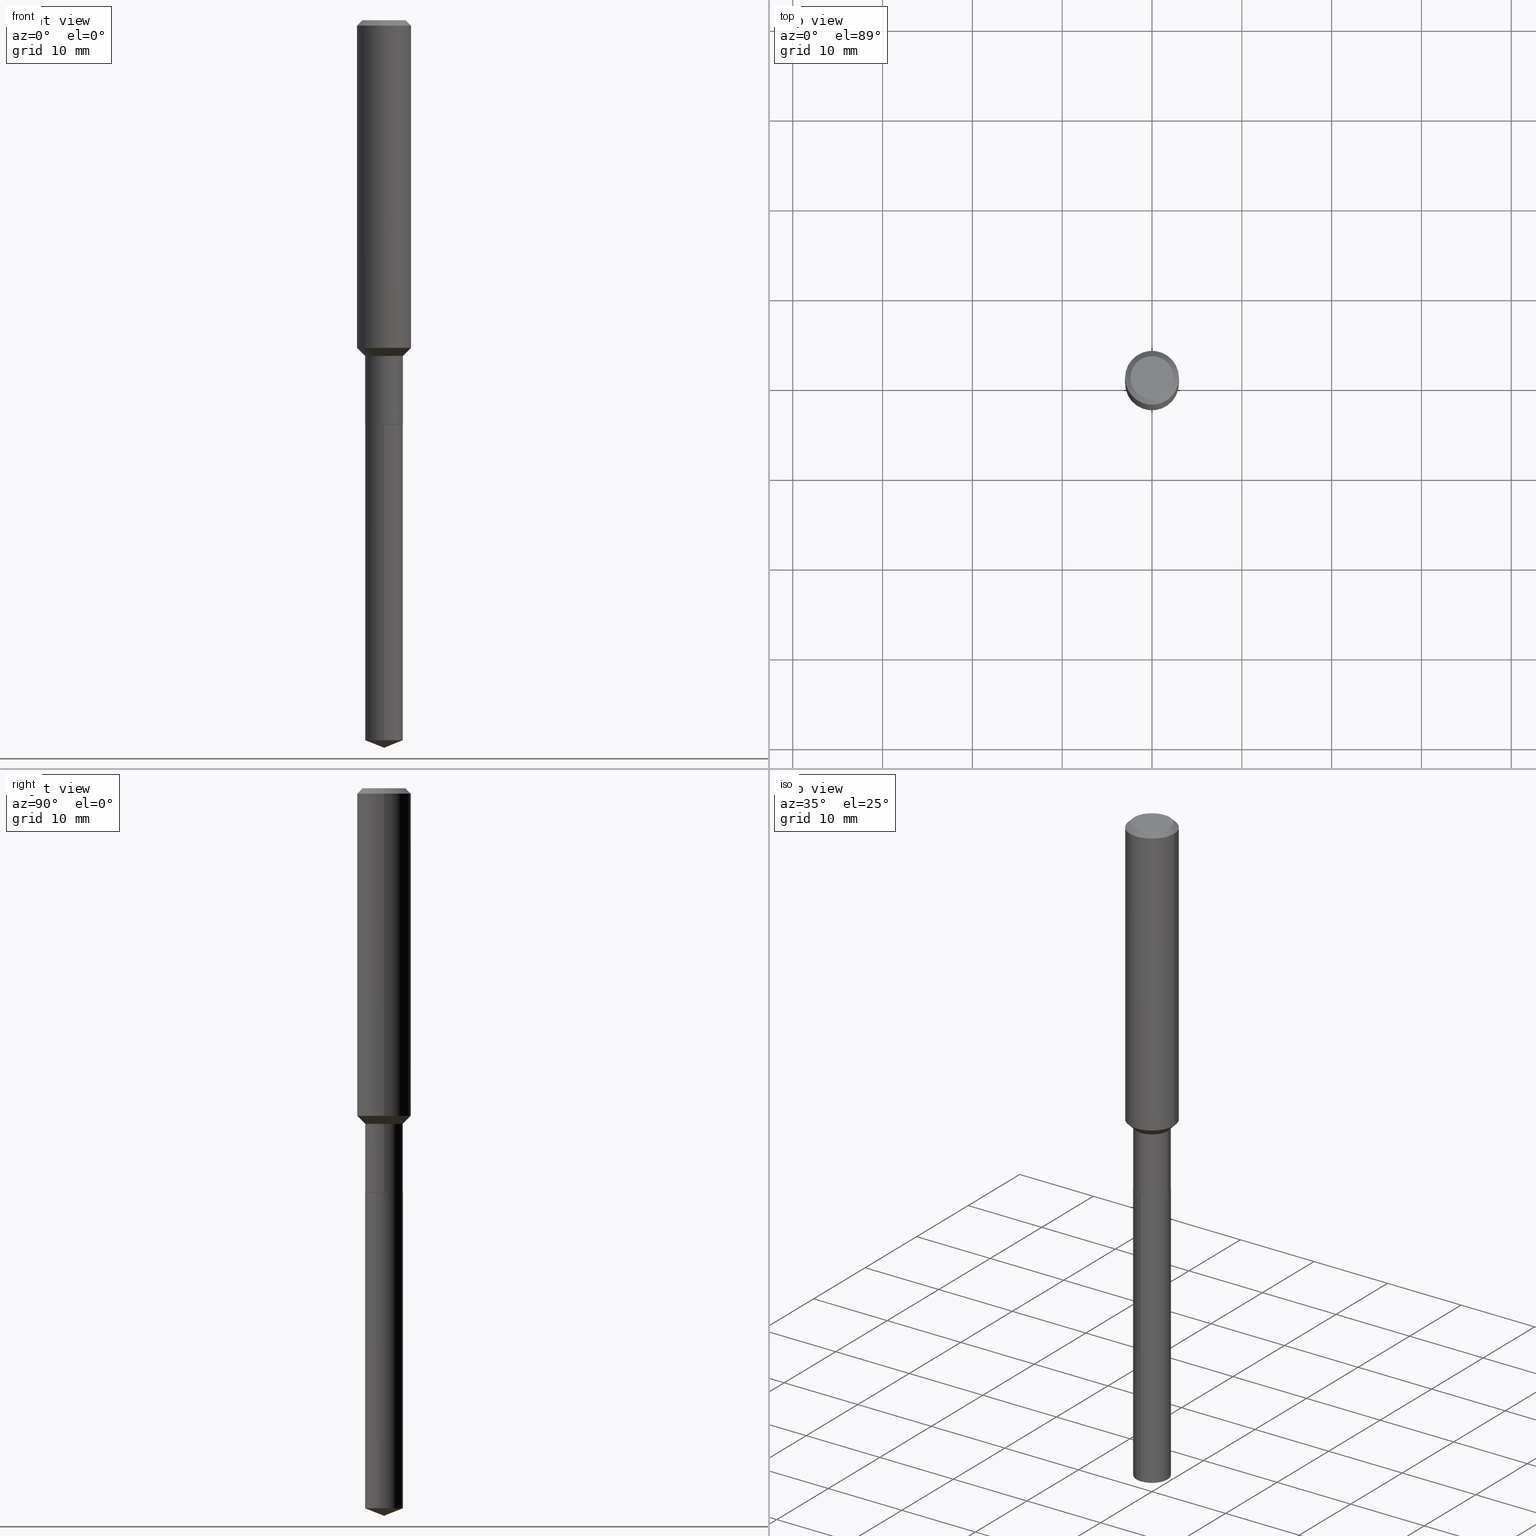
[diagram: canonical four-view strip — front | top / right | iso, engineering-drawing reading convention]
A machine part, canonical four-view strip (front | top / right | iso — engineering-drawing reading convention). The complete STEP part file that produces these views, byte-faithful:
ISO-10303-21;
HEADER;
FILE_DESCRIPTION (( 'STEP AP203' ),
    '1' );
FILE_NAME ('66618.STEP',
    '2024-04-25T02:08:43',
    ( '' ),
    ( '' ),
    'SwSTEP 2.0',
    'SolidWorks 2023',
    '' );
FILE_SCHEMA (( 'CONFIG_CONTROL_DESIGN' ));
ENDSEC;

DATA;
#1 = DIRECTION ( 'NONE',  ( 0.000000000000000000, 0.000000000000000000, 1.000000000000000000 ) ) ;
#2 = LINE ( 'NONE', #424, #68 ) ;
#3 = EDGE_CURVE ( 'NONE', #327, #151, #231, .T. ) ;
#4 = DIRECTION ( 'NONE',  ( 1.000000000000000000, 0.000000000000000000, 0.000000000000000000 ) ) ;
#5 = DIRECTION ( 'NONE',  ( 1.000000000000000000, -6.982962677686263555E-15, 0.000000000000000000 ) ) ;
#6 = VECTOR ( 'NONE', #16, 39.37007874015748143 ) ;
#7 = AXIS2_PLACEMENT_3D ( 'NONE', #442, #438, #93 ) ;
#8 = DIRECTION ( 'NONE',  ( -2.445468806185136597E-29, 3.491481338843145583E-15, 1.000000000000000000 ) ) ;
#9 = CARTESIAN_POINT ( 'NONE',  ( -0.08269999999999996798, -4.549397651366318682E-15, -1.471300000000000274 ) ) ;
#10 = DIRECTION ( 'NONE',  ( -2.445468806185136597E-29, 3.491481338843145583E-15, 1.000000000000000000 ) ) ;
#11 = CARTESIAN_POINT ( 'NONE',  ( 5.776197320209327532E-31, -8.246878922347559293E-17, -0.02362000000000014088 ) ) ;
#12 = COORDINATED_UNIVERSAL_TIME_OFFSET ( 5, 0, .BEHIND. ) ;
#13 = ORIENTED_EDGE ( 'NONE', *, *, #421, .T. ) ;
#14 = FACE_OUTER_BOUND ( 'NONE', #104, .T. ) ;
#15 = AXIS2_PLACEMENT_3D ( 'NONE', #380, #41, #181 ) ;
#16 = DIRECTION ( 'NONE',  ( -0.7071067811865459074, 2.468850131082240100E-15, -0.7071067811865491270 ) ) ;
#17 = CARTESIAN_POINT ( 'NONE',  ( 3.511448658801237790E-29, -5.013418054444873531E-15, -1.435900000000000176 ) ) ;
#18 = DIRECTION ( 'NONE',  ( 1.000000000000000000, -6.982962677686267499E-15, 4.875432709231658792E-29 ) ) ;
#19 = DIRECTION ( 'NONE',  ( 2.438088387897960049E-29, -3.491481338843145188E-15, -1.000000000000000000 ) ) ;
#20 = CIRCLE ( 'NONE', #82, 0.08269999999999999574 ) ;
#21 = FACE_OUTER_BOUND ( 'NONE', #481, .T. ) ;
#22 = DIRECTION ( 'NONE',  ( 1.000000000000000000, -6.982962677686263555E-15, 0.000000000000000000 ) ) ;
#23 = EDGE_CURVE ( 'NONE', #91, #176, #185, .T. ) ;
#24 = AXIS2_PLACEMENT_3D ( 'NONE', #232, #393, #317 ) ;
#25 = ORIENTED_EDGE ( 'NONE', *, *, #350, .T. ) ;
#26 = FACE_OUTER_BOUND ( 'NONE', #69, .T. ) ;
#27 = ORIENTED_EDGE ( 'NONE', *, *, #99, .T. ) ;
#28 = EDGE_CURVE ( 'NONE', #207, #354, #390, .T. ) ;
#29 = DIRECTION ( 'NONE',  ( 1.000000000000000000, -6.982962677686266711E-15, 0.000000000000000000 ) ) ;
#30 = DESIGN_CONTEXT ( 'detailed design', #136, 'design' ) ;
#31 = CONICAL_SURFACE ( 'NONE', #412, 0.1180999999999999966, 0.7853981633974460586 ) ;
#32 = LOCAL_TIME ( 22, 8, 43.00000000000000000, #377 ) ;
#33 = EDGE_CURVE ( 'NONE', #43, #90, #226, .T. ) ;
#34 = ORIENTED_EDGE ( 'NONE', *, *, #291, .F. ) ;
#35 = CARTESIAN_POINT ( 'NONE',  ( 7.798695523167827716E-29, -1.113419722778666995E-14, -3.189000000000000501 ) ) ;
#36 = LINE ( 'NONE', #9, #402 ) ;
#37 = DIRECTION ( 'NONE',  ( 1.000000000000000000, -6.982962677686263555E-15, 0.000000000000000000 ) ) ;
#38 = APPROVAL_DATE_TIME ( #312, #330 ) ;
#39 = ORIENTED_EDGE ( 'NONE', *, *, #23, .F. ) ;
#40 = AXIS2_PLACEMENT_3D ( 'NONE', #134, #106, #444 ) ;
#41 = DIRECTION ( 'NONE',  ( -2.445468806185136597E-29, 3.491481338843145583E-15, 1.000000000000000000 ) ) ;
#42 = DIRECTION ( 'NONE',  ( -2.445498752953222356E-29, 3.491438453366782686E-15, 1.000000000000000000 ) ) ;
#43 = VERTEX_POINT ( 'NONE', #464 ) ;
#44 = DIRECTION ( 'NONE',  ( 1.000000000000000000, -6.982962677686261189E-15, 0.000000000000000000 ) ) ;
#45 = CARTESIAN_POINT ( 'NONE',  ( -0.08269999999999996798, -5.072945278125848507E-15, -1.471300000000000274 ) ) ;
#46 = CARTESIAN_POINT ( 'NONE',  ( 0.000000000000000000, 0.000000000000000000, 0.000000000000000000 ) ) ;
#47 = EDGE_CURVE ( 'NONE', #51, #410, #447, .T. ) ;
#48 = DIRECTION ( 'NONE',  ( -2.445468806185136597E-29, 3.491481338843145583E-15, 1.000000000000000000 ) ) ;
#49 = DIRECTION ( 'NONE',  ( -2.445468806185136877E-29, 3.491481338843145188E-15, 1.000000000000000000 ) ) ;
#50 = ORIENTED_EDGE ( 'NONE', *, *, #92, .F. ) ;
#51 = VERTEX_POINT ( 'NONE', #220 ) ;
#52 = CIRCLE ( 'NONE', #386, 0.08269999999999996798 ) ;
#53 =( GEOMETRIC_REPRESENTATION_CONTEXT ( 3 ) GLOBAL_UNCERTAINTY_ASSIGNED_CONTEXT ( ( #301 ) ) GLOBAL_UNIT_ASSIGNED_CONTEXT ( ( #300, #135, #133 ) ) REPRESENTATION_CONTEXT ( 'NONE', 'WORKASPACE' ) );
#54 = DIRECTION ( 'NONE',  ( -2.445498752953222356E-29, 3.491438453366782686E-15, 1.000000000000000000 ) ) ;
#55 = AXIS2_PLACEMENT_3D ( 'NONE', #190, #8, #155 ) ;
#56 = DIRECTION ( 'NONE',  ( 1.000000000000000000, -6.982962677686270655E-15, 0.000000000000000000 ) ) ;
#57 = CARTESIAN_POINT ( 'NONE',  ( -0.1181000000000000799, 8.391509709326788873E-16, -5.809262341591047988E-30 ) ) ;
#58 = DIRECTION ( 'NONE',  ( -2.445468806185136597E-29, 3.491481338843145583E-15, 1.000000000000000000 ) ) ;
#59 = ORIENTED_EDGE ( 'NONE', *, *, #488, .F. ) ;
#60 = CIRCLE ( 'NONE', #323, 0.08219999999999999529 ) ;
#61 = CARTESIAN_POINT ( 'NONE',  ( 4.332637083918206987E-29, -6.185857488028401870E-15, -1.771700000000000497 ) ) ;
#62 = CARTESIAN_POINT ( 'NONE',  ( 0.08269999999999998186, -5.774910134446541868E-16, 4.032598193583238570E-30 ) ) ;
#63 = ORIENTED_EDGE ( 'NONE', *, *, #148, .T. ) ;
#64 = DIRECTION ( 'NONE',  ( -2.445498752953222356E-29, 3.491438453366782686E-15, 1.000000000000000000 ) ) ;
#65 = EDGE_LOOP ( 'NONE', ( #419, #252 ) ) ;
#66 = AXIS2_PLACEMENT_3D ( 'NONE', #351, #320, #394 ) ;
#67 = ORIENTED_EDGE ( 'NONE', *, *, #206, .T. ) ;
#68 = VECTOR ( 'NONE', #378, 39.37007874015748143 ) ;
#69 = EDGE_LOOP ( 'NONE', ( #435, #227, #50, #449 ) ) ;
#70 = EDGE_CURVE ( 'NONE', #410, #292, #434, .T. ) ;
#71 = FACE_OUTER_BOUND ( 'NONE', #285, .T. ) ;
#72 = CARTESIAN_POINT ( 'NONE',  ( 7.718976929869879912E-29, -1.102053472515475002E-14, -3.156423603666644873 ) ) ;
#73 = AXIS2_PLACEMENT_3D ( 'NONE', #388, #42, #188 ) ;
#74 = AXIS2_PLACEMENT_3D ( 'NONE', #316, #10, #381 ) ;
#75 = CARTESIAN_POINT ( 'NONE',  ( 5.876188424736460136E-16, 0.08269999999999382012, -1.771700000000000719 ) ) ;
#76 = ORIENTED_EDGE ( 'NONE', *, *, #350, .F. ) ;
#77 = CC_DESIGN_PERSON_AND_ORGANIZATION_ASSIGNMENT ( #280, #213, ( #322 ) ) ;
#78 = CARTESIAN_POINT ( 'NONE',  ( -0.08269999999999998186, 5.876188424736027248E-16, -4.067959319640806203E-30 ) ) ;
#79 = ORIENTED_EDGE ( 'NONE', *, *, #33, .T. ) ;
#80 = MECHANICAL_CONTEXT ( 'NONE', #258, 'mechanical' ) ;
#81 = CYLINDRICAL_SURFACE ( 'NONE', #73, 0.08269999999999999574 ) ;
#82 = AXIS2_PLACEMENT_3D ( 'NONE', #225, #389, #44 ) ;
#83 = ADVANCED_FACE ( 'NONE', ( #283 ), #290, .T. ) ;
#84 = CIRCLE ( 'NONE', #122, 0.09447999999999998066 ) ;
#85 = DIRECTION ( 'NONE',  ( -1.000000000000000000, 6.982962677686266711E-15, 0.000000000000000000 ) ) ;
#86 = DIRECTION ( 'NONE',  ( 1.000000000000000000, -6.982962677686266711E-15, 4.876176775795936353E-29 ) ) ;
#87 = APPLICATION_PROTOCOL_DEFINITION ( 'international standard', 'config_control_design', 1994, #136 ) ;
#88 = PERSON_AND_ORGANIZATION ( #420, #237 ) ;
#89 = CARTESIAN_POINT ( 'NONE',  ( 0.08219999999999999529, -6.759857020134212754E-15, -1.771700000000000497 ) ) ;
#90 = VERTEX_POINT ( 'NONE', #197 ) ;
#91 = VERTEX_POINT ( 'NONE', #474 ) ;
#92 = EDGE_CURVE ( 'NONE', #468, #176, #360, .T. ) ;
#93 = DIRECTION ( 'NONE',  ( 1.000000000000000000, -6.982962677686265922E-15, 4.876176775795935793E-29 ) ) ;
#94 = CLOSED_SHELL ( 'NONE', ( #83, #200, #295, #259, #448, #131, #332, #460, #212, #215, #342, #476 ) ) ;
#95 = AXIS2_PLACEMENT_3D ( 'NONE', #243, #480, #364 ) ;
#96 = APPROVAL_ROLE ( '' ) ;
#97 = FACE_OUTER_BOUND ( 'NONE', #445, .T. ) ;
#98 = PLANE ( 'NONE',  #146 ) ;
#99 = EDGE_CURVE ( 'NONE', #43, #327, #423, .T. ) ;
#100 = EDGE_LOOP ( 'NONE', ( #160, #355, #126 ) ) ;
#101 = LENGTH_MEASURE_WITH_UNIT ( LENGTH_MEASURE( 0.02539999999999999897 ), #149 );
#102 = CONICAL_SURFACE ( 'NONE', #121, 99.94676754584023115, 1.195550537616120401 ) ;
#103 = VECTOR ( 'NONE', #357, 39.37007874015748143 ) ;
#104 = EDGE_LOOP ( 'NONE', ( #27, #311 ) ) ;
#105 = ORIENTED_EDGE ( 'NONE', *, *, #148, .F. ) ;
#106 = DIRECTION ( 'NONE',  ( -2.445498752953222356E-29, 3.491438453366782686E-15, 1.000000000000000000 ) ) ;
#107 = CIRCLE ( 'NONE', #170, 0.08269999999999999574 ) ;
#108 = CARTESIAN_POINT ( 'NONE',  ( 0.08269999999999996798, -5.714507507284574607E-15, -1.471300000000000274 ) ) ;
#109 = PERSON_AND_ORGANIZATION ( #420, #237 ) ;
#110 = ORIENTED_EDGE ( 'NONE', *, *, #247, .T. ) ;
#111 = DATE_AND_TIME ( #456, #32 ) ;
#112 = CIRCLE ( 'NONE', #477, 0.1181000000000001632 ) ;
#113 = AXIS2_PLACEMENT_3D ( 'NONE', #214, #371, #29 ) ;
#114 = CARTESIAN_POINT ( 'NONE',  ( 4.332637083918206987E-29, -6.185857488028401870E-15, -1.771700000000000497 ) ) ;
#115 = ORIENTED_EDGE ( 'NONE', *, *, #33, .F. ) ;
#116 = LINE ( 'NONE', #263, #217 ) ;
#117 = COORDINATED_UNIVERSAL_TIME_OFFSET ( 5, 0, .BEHIND. ) ;
#118 = DIRECTION ( 'NONE',  ( -2.445468806185136597E-29, 3.491481338843145583E-15, 1.000000000000000000 ) ) ;
#119 = PLANE ( 'NONE',  #162 ) ;
#120 = ORIENTED_EDGE ( 'NONE', *, *, #319, .T. ) ;
#121 = AXIS2_PLACEMENT_3D ( 'NONE', #416, #427, #303 ) ;
#122 = AXIS2_PLACEMENT_3D ( 'NONE', #346, #340, #150 ) ;
#123 = FACE_OUTER_BOUND ( 'NONE', #343, .T. ) ;
#124 = DIRECTION ( 'NONE',  ( 1.000000000000000000, -6.982962677686270655E-15, 0.000000000000000000 ) ) ;
#125 = EDGE_CURVE ( 'NONE', #354, #91, #261, .T. ) ;
#126 = ORIENTED_EDGE ( 'NONE', *, *, #47, .F. ) ;
#127 = ORIENTED_EDGE ( 'NONE', *, *, #92, .T. ) ;
#128 = CC_DESIGN_PERSON_AND_ORGANIZATION_ASSIGNMENT ( #238, #174, ( #484 ) ) ;
#129 = AXIS2_PLACEMENT_3D ( 'NONE', #275, #436, #229 ) ;
#130 = VERTEX_POINT ( 'NONE', #159 ) ;
#131 = ADVANCED_FACE ( 'NONE', ( #168 ), #153, .T. ) ;
#132 = ORIENTED_EDGE ( 'NONE', *, *, #206, .F. ) ;
#133 =( NAMED_UNIT ( * ) SI_UNIT ( $, .STERADIAN. ) SOLID_ANGLE_UNIT ( ) );
#134 = CARTESIAN_POINT ( 'NONE',  ( 4.332637083918206987E-29, -6.185857488028401870E-15, -1.771700000000000497 ) ) ;
#135 =( NAMED_UNIT ( * ) PLANE_ANGLE_UNIT ( ) SI_UNIT ( $, .RADIAN. ) );
#136 = APPLICATION_CONTEXT ( 'configuration controlled 3d designs of mechanical parts and assemblies' ) ;
#137 = CARTESIAN_POINT ( 'NONE',  ( -8.848083599624647937E-28, 1.263239336174787439E-13, 36.18107874015748138 ) ) ;
#138 = AXIS2_PLACEMENT_3D ( 'NONE', #46, #294, #86 ) ;
#139 = LOCAL_TIME ( 22, 8, 43.00000000000000000, #382 ) ;
#140 = AXIS2_PLACEMENT_3D ( 'NONE', #279, #48, #37 ) ;
#141 = ORIENTED_EDGE ( 'NONE', *, *, #274, .F. ) ;
#142 = ADVANCED_BREP_SHAPE_REPRESENTATION ( '66618', ( #167, #337, #387 ), #53 ) ;
#143 = DIRECTION ( 'NONE',  ( 6.982962677686265922E-15, 1.000000000000000000, -3.491438453366782686E-15 ) ) ;
#144 = ADVANCED_FACE ( 'NONE', ( #428 ), #81, .T. ) ;
#145 = CARTESIAN_POINT ( 'NONE',  ( -0.08219999999999999529, -5.599142132059488744E-15, -1.771700000000000497 ) ) ;
#146 = AXIS2_PLACEMENT_3D ( 'NONE', #204, #19, #201 ) ;
#147 = APPROVAL_STATUS ( 'not_yet_approved' ) ;
#148 = EDGE_CURVE ( 'NONE', #130, #151, #309, .T. ) ;
#149 =( LENGTH_UNIT ( ) NAMED_UNIT ( * ) SI_UNIT ( $, .METRE. ) );
#150 = DIRECTION ( 'NONE',  ( 1.000000000000000000, -6.982962677686267499E-15, 4.875432709231658792E-29 ) ) ;
#151 = VERTEX_POINT ( 'NONE', #193 ) ;
#152 = CIRCLE ( 'NONE', #202, 0.1180999999999999966 ) ;
#153 = CYLINDRICAL_SURFACE ( 'NONE', #373, 0.08269999999999998186 ) ;
#154 = DIRECTION ( 'NONE',  ( 0.7071067811865483499, -2.468850131082265738E-15, 0.7071067811865466846 ) ) ;
#155 = DIRECTION ( 'NONE',  ( 1.000000000000000000, -6.982962677686261189E-15, 0.000000000000000000 ) ) ;
#156 = PERSON_AND_ORGANIZATION ( #420, #237 ) ;
#157 = ORIENTED_EDGE ( 'NONE', *, *, #230, .T. ) ;
#158 = CARTESIAN_POINT ( 'NONE',  ( 0.08219999999999999529, -6.759857020134212754E-15, -1.771700000000000497 ) ) ;
#159 = CARTESIAN_POINT ( 'NONE',  ( 0.1181000000000001632, -5.838105946679623371E-15, -1.435900000000000176 ) ) ;
#160 = ORIENTED_EDGE ( 'NONE', *, *, #241, .F. ) ;
#161 = VECTOR ( 'NONE', #49, 39.37007874015748143 ) ;
#162 = AXIS2_PLACEMENT_3D ( 'NONE', #114, #221, #143 ) ;
#163 = LOCAL_TIME ( 22, 8, 43.00000000000000000, #192 ) ;
#164 = VECTOR ( 'NONE', #392, 39.37007874015748143 ) ;
#165 = CARTESIAN_POINT ( 'NONE',  ( -5.774910134446108980E-16, -0.08270000000000618523, -1.771700000000000053 ) ) ;
#166 = ORIENTED_EDGE ( 'NONE', *, *, #230, .F. ) ;
#167 = MANIFOLD_SOLID_BREP ( 'Body-Move/Copy2[1]', #249 ) ;
#168 = FACE_OUTER_BOUND ( 'NONE', #267, .T. ) ;
#169 = DATE_TIME_ROLE ( 'creation_date' ) ;
#170 = AXIS2_PLACEMENT_3D ( 'NONE', #72, #328, #183 ) ;
#171 = CC_DESIGN_APPROVAL ( #465, ( #484 ) ) ;
#172 = DIRECTION ( 'NONE',  ( 1.000000000000000000, -6.982962677686266711E-15, 0.000000000000000000 ) ) ;
#173 = ORIENTED_EDGE ( 'NONE', *, *, #70, .F. ) ;
#174 = PERSON_AND_ORGANIZATION_ROLE ( 'creator' ) ;
#175 = CALENDAR_DATE ( 2024, 24, 4 ) ;
#176 = VERTEX_POINT ( 'NONE', #45 ) ;
#177 = AXIS2_PLACEMENT_3D ( 'NONE', #61, #314, #326 ) ;
#178 = AXIS2_PLACEMENT_3D ( 'NONE', #347, #361, #18 ) ;
#179 = ORIENTED_EDGE ( 'NONE', *, *, #28, .T. ) ;
#180 = CARTESIAN_POINT ( 'NONE',  ( 0.08269999999999996798, -5.714507507284574607E-15, -1.471300000000000274 ) ) ;
#181 = DIRECTION ( 'NONE',  ( 1.000000000000000000, -6.982962677686267499E-15, 4.876176775795936353E-29 ) ) ;
#182 = CONICAL_SURFACE ( 'NONE', #113, 0.08219999999999999529, 0.7853981633975507526 ) ;
#183 = DIRECTION ( 'NONE',  ( -6.982962677686265922E-15, -1.000000000000000000, 6.606645692053841341E-15 ) ) ;
#184 = APPROVAL_STATUS ( 'not_yet_approved' ) ;
#185 = LINE ( 'NONE', #78, #164 ) ;
#186 = PERSON_AND_ORGANIZATION_ROLE ( 'creator' ) ;
#187 = CIRCLE ( 'NONE', #177, 0.08269999999999999574 ) ;
#188 = DIRECTION ( 'NONE',  ( -6.982962677686265922E-15, -1.000000000000000000, 3.303322846026920670E-15 ) ) ;
#189 = EDGE_LOOP ( 'NONE', ( #286, #120, #222, #173 ) ) ;
#190 = CARTESIAN_POINT ( 'NONE',  ( 4.331414349515115307E-29, -6.184111747358981944E-15, -1.771200000000000552 ) ) ;
#191 = DIRECTION ( 'NONE',  ( -2.445468806185136597E-29, 3.491481338843145583E-15, 1.000000000000000000 ) ) ;
#192 = COORDINATED_UNIVERSAL_TIME_OFFSET ( 5, 0, .BEHIND. ) ;
#193 = CARTESIAN_POINT ( 'NONE',  ( 0.1180999999999999966, -9.071566814582237199E-16, -0.02362000000000014088 ) ) ;
#194 = PERSON_AND_ORGANIZATION ( #420, #237 ) ;
#195 = EDGE_CURVE ( 'NONE', #405, #91, #268, .T. ) ;
#196 = VECTOR ( 'NONE', #205, 39.37007874015748143 ) ;
#197 = CARTESIAN_POINT ( 'NONE',  ( -0.1180999999999999966, -1.708792450901494916E-15, -0.02362000000000014088 ) ) ;
#198 = PLANE ( 'NONE',  #7 ) ;
#199 = DIRECTION ( 'NONE',  ( 1.000000000000000000, -6.982962677686266711E-15, 4.876176775795936353E-29 ) ) ;
#200 = ADVANCED_FACE ( 'NONE', ( #356 ), #31, .T. ) ;
#201 = DIRECTION ( 'NONE',  ( -1.000000000000000000, 6.982962677686265922E-15, -4.876176775795935793E-29 ) ) ;
#202 = AXIS2_PLACEMENT_3D ( 'NONE', #408, #251, #172 ) ;
#203 = CARTESIAN_POINT ( 'NONE',  ( 3.511448658801237790E-29, -5.013418054444873531E-15, -1.435900000000000176 ) ) ;
#204 = CARTESIAN_POINT ( 'NONE',  ( 2.358133508849003952E-46, -3.366789680499277518E-32, -9.642868896486260050E-18 ) ) ;
#205 = DIRECTION ( 'NONE',  ( -2.445468806185136877E-29, 3.491481338843145188E-15, 1.000000000000000000 ) ) ;
#206 = EDGE_CURVE ( 'NONE', #91, #354, #20, .T. ) ;
#207 = VERTEX_POINT ( 'NONE', #158 ) ;
#208 = DIRECTION ( 'NONE',  ( -6.982962677686265922E-15, -1.000000000000000000, 3.498627837349995151E-15 ) ) ;
#209 = VECTOR ( 'NONE', #473, 39.37007874015748143 ) ;
#210 = FACE_OUTER_BOUND ( 'NONE', #406, .T. ) ;
#211 = CIRCLE ( 'NONE', #489, 0.1180999999999999966 ) ;
#212 = ADVANCED_FACE ( 'NONE', ( #123 ), #297, .T. ) ;
#213 = PERSON_AND_ORGANIZATION_ROLE ( 'design_owner' ) ;
#214 = CARTESIAN_POINT ( 'NONE',  ( 4.332637083918206987E-29, -6.185857488028401870E-15, -1.771700000000000497 ) ) ;
#215 = ADVANCED_FACE ( 'NONE', ( #14 ), #98, .F. ) ;
#216 = PERSON_AND_ORGANIZATION ( #420, #237 ) ;
#217 = VECTOR ( 'NONE', #459, 39.37007874015748854 ) ;
#218 = DIRECTION ( 'NONE',  ( -6.982962677686265922E-15, -1.000000000000000000, 3.303322846026920670E-15 ) ) ;
#219 = VECTOR ( 'NONE', #54, 39.37007874015748143 ) ;
#220 = CARTESIAN_POINT ( 'NONE',  ( 5.876188424736798360E-16, 0.08269999999998896290, -3.156423603666645761 ) ) ;
#221 = DIRECTION ( 'NONE',  ( 2.445498752953222076E-29, -3.491438453366782686E-15, -1.000000000000000000 ) ) ;
#222 = ORIENTED_EDGE ( 'NONE', *, *, #310, .F. ) ;
#223 = LINE ( 'NONE', #57, #271 ) ;
#224 = LOCAL_TIME ( 22, 8, 43.00000000000000000, #117 ) ;
#225 = CARTESIAN_POINT ( 'NONE',  ( 4.331414349515115307E-29, -6.184111747358981944E-15, -1.771200000000000552 ) ) ;
#226 = LINE ( 'NONE', #269, #6 ) ;
#227 = ORIENTED_EDGE ( 'NONE', *, *, #23, .T. ) ;
#228 = CC_DESIGN_PERSON_AND_ORGANIZATION_ASSIGNMENT ( #216, #372, ( #246 ) ) ;
#229 = DIRECTION ( 'NONE',  ( -1.000000000000000000, 6.982962677686266711E-15, 0.000000000000000000 ) ) ;
#230 = EDGE_CURVE ( 'NONE', #176, #468, #52, .T. ) ;
#231 = LINE ( 'NONE', #437, #209 ) ;
#232 = CARTESIAN_POINT ( 'NONE',  ( 3.598018254540192216E-29, -5.137016493839921505E-15, -1.471300000000000274 ) ) ;
#233 = ORIENTED_EDGE ( 'NONE', *, *, #3, .T. ) ;
#234 = DIRECTION ( 'NONE',  ( -2.445468806185136597E-29, 3.491481338843145583E-15, 1.000000000000000000 ) ) ;
#235 = ORIENTED_EDGE ( 'NONE', *, *, #344, .F. ) ;
#236 = CONICAL_SURFACE ( 'NONE', #24, 0.08269999999999996798, 0.7853981633974495002 ) ;
#237 = ORGANIZATION ( 'UNSPECIFIED', 'UNSPECIFIED', '' ) ;
#238 = PERSON_AND_ORGANIZATION ( #420, #237 ) ;
#239 = CALENDAR_DATE ( 2024, 24, 4 ) ;
#240 = CALENDAR_DATE ( 2024, 24, 4 ) ;
#241 = EDGE_CURVE ( 'NONE', #245, #51, #2, .T. ) ;
#242 = CYLINDRICAL_SURFACE ( 'NONE', #458, 0.1181000000000000799 ) ;
#243 = CARTESIAN_POINT ( 'NONE',  ( 4.332637083918206987E-29, -6.185857488028401870E-15, -1.771700000000000497 ) ) ;
#244 = DIRECTION ( 'NONE',  ( -2.445468806185136597E-29, 3.491481338843145583E-15, 1.000000000000000000 ) ) ;
#245 = VERTEX_POINT ( 'NONE', #35 ) ;
#246 = PRODUCT_DEFINITION_FORMATION_WITH_SPECIFIED_SOURCE ( 'ANY', '', #322, .NOT_KNOWN. ) ;
#247 = EDGE_CURVE ( 'NONE', #151, #90, #211, .T. ) ;
#248 = CYLINDRICAL_SURFACE ( 'NONE', #40, 0.08269999999999999574 ) ;
#249 = CLOSED_SHELL ( 'NONE', ( #144, #376, #414, #365, #443 ) ) ;
#250 = ORIENTED_EDGE ( 'NONE', *, *, #454, .F. ) ;
#251 = DIRECTION ( 'NONE',  ( -2.445468806185136597E-29, 3.491481338843145583E-15, 1.000000000000000000 ) ) ;
#252 = ORIENTED_EDGE ( 'NONE', *, *, #274, .T. ) ;
#253 = DATE_AND_TIME ( #239, #224 ) ;
#254 = AXIS2_PLACEMENT_3D ( 'NONE', #324, #479, #218 ) ;
#255 = CYLINDRICAL_SURFACE ( 'NONE', #138, 0.1181000000000000799 ) ;
#256 = ORIENTED_EDGE ( 'NONE', *, *, #369, .T. ) ;
#257 = PRODUCT_RELATED_PRODUCT_CATEGORY ( 'detail', '', ( #322 ) ) ;
#258 = APPLICATION_CONTEXT ( 'configuration controlled 3d designs of mechanical parts and assemblies' ) ;
#259 = ADVANCED_FACE ( 'NONE', ( #278 ), #370, .T. ) ;
#260 = ORIENTED_EDGE ( 'NONE', *, *, #291, .T. ) ;
#261 = CIRCLE ( 'NONE', #55, 0.08269999999999999574 ) ;
#262 = CARTESIAN_POINT ( 'NONE',  ( 4.332637083918206987E-29, -6.185857488028401870E-15, -1.771700000000000497 ) ) ;
#263 = CARTESIAN_POINT ( 'NONE',  ( 7.798589409789792218E-29, -1.113434918818361475E-14, -3.189000000000000501 ) ) ;
#264 = ORIENTED_EDGE ( 'NONE', *, *, #422, .F. ) ;
#265 = CARTESIAN_POINT ( 'NONE',  ( 0.09447999999999998066, -7.704367267948738690E-16, -1.928573779296752193E-17 ) ) ;
#266 = DIRECTION ( 'NONE',  ( 1.000000000000000000, -6.982962677686267499E-15, 4.876176775795936353E-29 ) ) ;
#267 = EDGE_LOOP ( 'NONE', ( #39, #67, #256, #166 ) ) ;
#268 = LINE ( 'NONE', #308, #358 ) ;
#269 = CARTESIAN_POINT ( 'NONE',  ( -0.1180999999999999966, 7.422191030112725094E-16, -0.02362000000000014088 ) ) ;
#270 = CARTESIAN_POINT ( 'NONE',  ( 0.1181000000000000799, -8.246878922347486570E-16, 5.758764772215004644E-30 ) ) ;
#271 = VECTOR ( 'NONE', #401, 39.37007874015748143 ) ;
#272 = APPROVAL_PERSON_ORGANIZATION ( #417, #451, #455 ) ;
#273 = EDGE_LOOP ( 'NONE', ( #127, #13, #34, #264 ) ) ;
#274 = EDGE_CURVE ( 'NONE', #383, #292, #187, .T. ) ;
#275 = CARTESIAN_POINT ( 'NONE',  ( 5.776197320209327532E-31, -8.246878922347559293E-17, -0.02362000000000014088 ) ) ;
#276 = ORIENTED_EDGE ( 'NONE', *, *, #384, .F. ) ;
#277 = CARTESIAN_POINT ( 'NONE',  ( 0.000000000000000000, 0.000000000000000000, 0.000000000000000000 ) ) ;
#278 = FACE_OUTER_BOUND ( 'NONE', #273, .T. ) ;
#279 = CARTESIAN_POINT ( 'NONE',  ( 3.598018254540192216E-29, -5.137016493839921505E-15, -1.471300000000000274 ) ) ;
#280 = PERSON_AND_ORGANIZATION ( #420, #237 ) ;
#281 = ORIENTED_EDGE ( 'NONE', *, *, #319, .F. ) ;
#282 = DIRECTION ( 'NONE',  ( -2.445468806185136597E-29, 3.491481338843145583E-15, 1.000000000000000000 ) ) ;
#283 = FACE_OUTER_BOUND ( 'NONE', #339, .T. ) ;
#284 = CC_DESIGN_PERSON_AND_ORGANIZATION_ASSIGNMENT ( #194, #186, ( #246 ) ) ;
#285 = EDGE_LOOP ( 'NONE', ( #325, #352, #179, #132 ) ) ;
#286 = ORIENTED_EDGE ( 'NONE', *, *, #407, .T. ) ;
#287 = AXIS2_PLACEMENT_3D ( 'NONE', #137, #64, #208 ) ;
#288 = EDGE_CURVE ( 'NONE', #307, #130, #470, .T. ) ;
#289 = SECURITY_CLASSIFICATION ( '', '', #302 ) ;
#290 = CONICAL_SURFACE ( 'NONE', #74, 0.08219999999999999529, 0.7853981633975507526 ) ;
#291 = EDGE_CURVE ( 'NONE', #130, #307, #112, .T. ) ;
#292 = VERTEX_POINT ( 'NONE', #441 ) ;
#293 = EDGE_LOOP ( 'NONE', ( #250, #368, #296 ) ) ;
#294 = DIRECTION ( 'NONE',  ( -2.445468806185136597E-29, 3.491481338843145583E-15, 1.000000000000000000 ) ) ;
#295 = ADVANCED_FACE ( 'NONE', ( #97 ), #242, .T. ) ;
#296 = ORIENTED_EDGE ( 'NONE', *, *, #407, .F. ) ;
#297 = CONICAL_SURFACE ( 'NONE', #129, 0.1180999999999999966, 0.7853981633974460586 ) ;
#298 = APPROVAL_PERSON_ORGANIZATION ( #156, #330, #96 ) ;
#299 = DIRECTION ( 'NONE',  ( 1.000000000000000000, -6.982962677686266711E-15, 0.000000000000000000 ) ) ;
#300 =( CONVERSION_BASED_UNIT ( 'INCH', #101 ) LENGTH_UNIT ( ) NAMED_UNIT ( #397 ) );
#301 = UNCERTAINTY_MEASURE_WITH_UNIT (LENGTH_MEASURE( 1.000000000000000082E-05 ), #300, 'distance_accuracy_value', 'NONE');
#302 = SECURITY_CLASSIFICATION_LEVEL ( 'unclassified' ) ;
#303 = DIRECTION ( 'NONE',  ( -6.982962677686265922E-15, -1.000000000000000000, 3.498627837349995151E-15 ) ) ;
#304 = CIRCLE ( 'NONE', #95, 0.08219999999999999529 ) ;
#305 = DIRECTION ( 'NONE',  ( -2.445498752953222356E-29, 3.491438453366782686E-15, 1.000000000000000000 ) ) ;
#306 = CARTESIAN_POINT ( 'NONE',  ( 0.000000000000000000, 0.000000000000000000, 0.000000000000000000 ) ) ;
#307 = VERTEX_POINT ( 'NONE', #362 ) ;
#308 = CARTESIAN_POINT ( 'NONE',  ( -0.08219999999999999529, -5.601791359233599156E-15, -1.771700000000000497 ) ) ;
#309 = LINE ( 'NONE', #270, #161 ) ;
#310 = EDGE_CURVE ( 'NONE', #292, #383, #313, .T. ) ;
#311 = ORIENTED_EDGE ( 'NONE', *, *, #488, .T. ) ;
#312 = DATE_AND_TIME ( #240, #396 ) ;
#313 = CIRCLE ( 'NONE', #254, 0.08269999999999999574 ) ;
#314 = DIRECTION ( 'NONE',  ( -2.445498752953222356E-29, 3.491438453366782686E-15, 1.000000000000000000 ) ) ;
#315 = ORIENTED_EDGE ( 'NONE', *, *, #47, .T. ) ;
#316 = CARTESIAN_POINT ( 'NONE',  ( 4.332637083918206987E-29, -6.185857488028401870E-15, -1.771700000000000497 ) ) ;
#317 = DIRECTION ( 'NONE',  ( 1.000000000000000000, -6.982962677686263555E-15, 0.000000000000000000 ) ) ;
#318 = ORIENTED_EDGE ( 'NONE', *, *, #28, .F. ) ;
#319 = EDGE_CURVE ( 'NONE', #51, #383, #341, .T. ) ;
#320 = DIRECTION ( 'NONE',  ( -2.445498752953222356E-29, 3.491438453366782686E-15, 1.000000000000000000 ) ) ;
#321 = DIRECTION ( 'NONE',  ( 1.000000000000000000, -6.982962677686266711E-15, 0.000000000000000000 ) ) ;
#322 = PRODUCT ( '66618', '66618', '', ( #80 ) ) ;
#323 = AXIS2_PLACEMENT_3D ( 'NONE', #262, #375, #299 ) ;
#324 = CARTESIAN_POINT ( 'NONE',  ( 4.332637083918206987E-29, -6.185857488028401870E-15, -1.771700000000000497 ) ) ;
#325 = ORIENTED_EDGE ( 'NONE', *, *, #195, .F. ) ;
#326 = DIRECTION ( 'NONE',  ( -6.982962677686265922E-15, -1.000000000000000000, 3.303322846026920670E-15 ) ) ;
#327 = VERTEX_POINT ( 'NONE', #265 ) ;
#328 = DIRECTION ( 'NONE',  ( -2.445498752953222356E-29, 3.491438453366782686E-15, 1.000000000000000000 ) ) ;
#329 = CARTESIAN_POINT ( 'NONE',  ( 0.08269999999999999574, -6.761602760803635046E-15, -1.771200000000000552 ) ) ;
#330 = APPROVAL ( #353, 'UNSPECIFIED' ) ;
#331 = EDGE_CURVE ( 'NONE', #307, #90, #223, .T. ) ;
#332 = ADVANCED_FACE ( 'NONE', ( #21 ), #236, .T. ) ;
#333 = AXIS2_PLACEMENT_3D ( 'NONE', #203, #472, #124 ) ;
#334 = APPROVAL_PERSON_ORGANIZATION ( #88, #465, #415 ) ;
#335 = CARTESIAN_POINT ( 'NONE',  ( 5.876188424736800332E-16, 0.08269999999999382012, -1.771700000000000719 ) ) ;
#336 = ORIENTED_EDGE ( 'NONE', *, *, #3, .F. ) ;
#337 = MANIFOLD_SOLID_BREP ( 'Body-Move/Copy2[2]', #94 ) ;
#338 = DATE_AND_TIME ( #490, #139 ) ;
#339 = EDGE_LOOP ( 'NONE', ( #366, #469, #450, #318 ) ) ;
#340 = DIRECTION ( 'NONE',  ( -2.445468806185136597E-29, 3.491481338843145583E-15, 1.000000000000000000 ) ) ;
#341 = LINE ( 'NONE', #75, #475 ) ;
#342 = ADVANCED_FACE ( 'NONE', ( #395 ), #198, .F. ) ;
#343 = EDGE_LOOP ( 'NONE', ( #336, #425, #79, #25 ) ) ;
#344 = EDGE_CURVE ( 'NONE', #207, #405, #304, .T. ) ;
#345 = CARTESIAN_POINT ( 'NONE',  ( 5.776197320209327532E-31, -8.246878922347559293E-17, -0.02362000000000014088 ) ) ;
#346 = CARTESIAN_POINT ( 'NONE',  ( 4.716267017698007905E-46, -6.733579360998555036E-32, -1.928573779297252010E-17 ) ) ;
#347 = CARTESIAN_POINT ( 'NONE',  ( 4.716267017698007905E-46, -6.733579360998555036E-32, -1.928573779297252010E-17 ) ) ;
#348 = ORIENTED_EDGE ( 'NONE', *, *, #70, .T. ) ;
#349 = LINE ( 'NONE', #108, #374 ) ;
#350 = EDGE_CURVE ( 'NONE', #90, #151, #152, .T. ) ;
#351 = CARTESIAN_POINT ( 'NONE',  ( 7.718976929869879912E-29, -1.102053472515475002E-14, -3.156423603666644873 ) ) ;
#352 = ORIENTED_EDGE ( 'NONE', *, *, #384, .T. ) ;
#353 = APPROVAL_STATUS ( 'not_yet_approved' ) ;
#354 = VERTEX_POINT ( 'NONE', #329 ) ;
#355 = ORIENTED_EDGE ( 'NONE', *, *, #454, .T. ) ;
#356 = FACE_OUTER_BOUND ( 'NONE', #471, .T. ) ;
#357 = DIRECTION ( 'NONE',  ( 0.7071067811866199593, -2.468850131083015945E-15, 0.7071067811864750752 ) ) ;
#358 = VECTOR ( 'NONE', #426, 39.37007874015748143 ) ;
#359 = CC_DESIGN_DATE_AND_TIME_ASSIGNMENT ( #338, #486, ( #289 ) ) ;
#360 = CIRCLE ( 'NONE', #140, 0.08269999999999996798 ) ;
#361 = DIRECTION ( 'NONE',  ( -2.445468806185136597E-29, 3.491481338843145583E-15, 1.000000000000000000 ) ) ;
#362 = CARTESIAN_POINT ( 'NONE',  ( -0.1181000000000001632, -4.174267083512194545E-15, -1.435900000000000176 ) ) ;
#363 = ORIENTED_EDGE ( 'NONE', *, *, #288, .F. ) ;
#364 = DIRECTION ( 'NONE',  ( 1.000000000000000000, -6.982962677686266711E-15, 0.000000000000000000 ) ) ;
#365 = ADVANCED_FACE ( 'NONE', ( #210 ), #248, .T. ) ;
#366 = ORIENTED_EDGE ( 'NONE', *, *, #344, .T. ) ;
#367 = FACE_OUTER_BOUND ( 'NONE', #293, .T. ) ;
#368 = ORIENTED_EDGE ( 'NONE', *, *, #241, .T. ) ;
#369 = EDGE_CURVE ( 'NONE', #354, #468, #404, .T. ) ;
#370 = CONICAL_SURFACE ( 'NONE', #433, 0.08269999999999996798, 0.7853981633974495002 ) ;
#371 = DIRECTION ( 'NONE',  ( -2.445468806185136597E-29, 3.491481338843145583E-15, 1.000000000000000000 ) ) ;
#372 = PERSON_AND_ORGANIZATION_ROLE ( 'design_supplier' ) ;
#373 = AXIS2_PLACEMENT_3D ( 'NONE', #306, #118, #266 ) ;
#374 = VECTOR ( 'NONE', #154, 39.37007874015748143 ) ;
#375 = DIRECTION ( 'NONE',  ( -2.445468806185136597E-29, 3.491481338843145583E-15, 1.000000000000000000 ) ) ;
#376 = ADVANCED_FACE ( 'NONE', ( #367 ), #439, .T. ) ;
#377 = COORDINATED_UNIVERSAL_TIME_OFFSET ( 5, 0, .BEHIND. ) ;
#378 = DIRECTION ( 'NONE',  ( 6.611014441532069744E-15, 0.9304175679820275713, 0.3665012267242896971 ) ) ;
#379 = APPROVAL_DATE_TIME ( #253, #465 ) ;
#380 = CARTESIAN_POINT ( 'NONE',  ( 0.000000000000000000, 0.000000000000000000, 0.000000000000000000 ) ) ;
#381 = DIRECTION ( 'NONE',  ( 1.000000000000000000, -6.982962677686266711E-15, 0.000000000000000000 ) ) ;
#382 = COORDINATED_UNIVERSAL_TIME_OFFSET ( 5, 0, .BEHIND. ) ;
#383 = VERTEX_POINT ( 'NONE', #335 ) ;
#384 = EDGE_CURVE ( 'NONE', #405, #207, #60, .T. ) ;
#385 = FACE_OUTER_BOUND ( 'NONE', #100, .T. ) ;
#386 = AXIS2_PLACEMENT_3D ( 'NONE', #411, #191, #5 ) ;
#387 = AXIS2_PLACEMENT_3D ( 'NONE', #277, #1, #4 ) ;
#388 = CARTESIAN_POINT ( 'NONE',  ( 4.332637083918206987E-29, -6.185857488028401870E-15, -1.771700000000000497 ) ) ;
#389 = DIRECTION ( 'NONE',  ( -2.445468806185136597E-29, 3.491481338843145583E-15, 1.000000000000000000 ) ) ;
#390 = LINE ( 'NONE', #89, #103 ) ;
#391 = ORIENTED_EDGE ( 'NONE', *, *, #331, .T. ) ;
#392 = DIRECTION ( 'NONE',  ( -2.445468806185136877E-29, 3.491481338843145188E-15, 1.000000000000000000 ) ) ;
#393 = DIRECTION ( 'NONE',  ( -2.445468806185136597E-29, 3.491481338843145583E-15, 1.000000000000000000 ) ) ;
#394 = DIRECTION ( 'NONE',  ( -6.982962677686265922E-15, -1.000000000000000000, 6.606645692053841341E-15 ) ) ;
#395 = FACE_OUTER_BOUND ( 'NONE', #483, .T. ) ;
#396 = LOCAL_TIME ( 22, 8, 43.00000000000000000, #12 ) ;
#397 = DIMENSIONAL_EXPONENTS ( 1.000000000000000000, 0.000000000000000000, 0.000000000000000000, 0.000000000000000000, 0.000000000000000000, 0.000000000000000000, 0.000000000000000000 ) ;
#398 = CARTESIAN_POINT ( 'NONE',  ( 3.598018254540192216E-29, -5.137016493839921505E-15, -1.471300000000000274 ) ) ;
#399 = CARTESIAN_POINT ( 'NONE',  ( 0.000000000000000000, 0.000000000000000000, 0.000000000000000000 ) ) ;
#400 = ORIENTED_EDGE ( 'NONE', *, *, #288, .T. ) ;
#401 = DIRECTION ( 'NONE',  ( -2.445468806185136877E-29, 3.491481338843145188E-15, 1.000000000000000000 ) ) ;
#402 = VECTOR ( 'NONE', #453, 39.37007874015748143 ) ;
#403 = ORIENTED_EDGE ( 'NONE', *, *, #247, .F. ) ;
#404 = LINE ( 'NONE', #62, #196 ) ;
#405 = VERTEX_POINT ( 'NONE', #145 ) ;
#406 = EDGE_LOOP ( 'NONE', ( #281, #315, #348, #141 ) ) ;
#407 = EDGE_CURVE ( 'NONE', #410, #51, #107, .T. ) ;
#408 = CARTESIAN_POINT ( 'NONE',  ( 5.776197320209327532E-31, -8.246878922347559293E-17, -0.02362000000000014088 ) ) ;
#409 = CC_DESIGN_DATE_AND_TIME_ASSIGNMENT ( #478, #169, ( #484 ) ) ;
#410 = VERTEX_POINT ( 'NONE', #485 ) ;
#411 = CARTESIAN_POINT ( 'NONE',  ( 3.598018254540192216E-29, -5.137016493839921505E-15, -1.471300000000000274 ) ) ;
#412 = AXIS2_PLACEMENT_3D ( 'NONE', #11, #431, #85 ) ;
#413 = CC_DESIGN_APPROVAL ( #330, ( #246 ) ) ;
#414 = ADVANCED_FACE ( 'NONE', ( #385 ), #102, .T. ) ;
#415 = APPROVAL_ROLE ( '' ) ;
#416 = CARTESIAN_POINT ( 'NONE',  ( -8.848083599624647937E-28, 1.263239336174787439E-13, 36.18107874015748138 ) ) ;
#417 = PERSON_AND_ORGANIZATION ( #420, #237 ) ;
#418 = SHAPE_DEFINITION_REPRESENTATION ( #467, #142 ) ;
#419 = ORIENTED_EDGE ( 'NONE', *, *, #310, .T. ) ;
#420 = PERSON ( 'UNSPECIFIED', 'UNSPECIFIED', 'UNSPECIFIED', ('UNSPECIFIED'), ('UNSPECIFIED'), ('UNSPECIFIED') ) ;
#421 = EDGE_CURVE ( 'NONE', #176, #307, #36, .T. ) ;
#422 = EDGE_CURVE ( 'NONE', #468, #130, #349, .T. ) ;
#423 = CIRCLE ( 'NONE', #178, 0.09447999999999998066 ) ;
#424 = CARTESIAN_POINT ( 'NONE',  ( 7.798696453656895021E-29, -1.113419722778667310E-14, -3.189000000000000501 ) ) ;
#425 = ORIENTED_EDGE ( 'NONE', *, *, #99, .F. ) ;
#426 = DIRECTION ( 'NONE',  ( -0.7071067811866199593, 7.493145998870616062E-15, 0.7071067811864750752 ) ) ;
#427 = DIRECTION ( 'NONE',  ( -2.445498752953222356E-29, 3.491438453366782686E-15, 1.000000000000000000 ) ) ;
#428 = FACE_OUTER_BOUND ( 'NONE', #189, .T. ) ;
#429 = CC_DESIGN_PERSON_AND_ORGANIZATION_ASSIGNMENT ( #109, #461, ( #289 ) ) ;
#430 = ORIENTED_EDGE ( 'NONE', *, *, #331, .F. ) ;
#431 = DIRECTION ( 'NONE',  ( 2.445468806185136597E-29, -3.491481338843145583E-15, -1.000000000000000000 ) ) ;
#432 = FACE_OUTER_BOUND ( 'NONE', #452, .T. ) ;
#433 = AXIS2_PLACEMENT_3D ( 'NONE', #398, #234, #22 ) ;
#434 = LINE ( 'NONE', #165, #219 ) ;
#435 = ORIENTED_EDGE ( 'NONE', *, *, #125, .T. ) ;
#436 = DIRECTION ( 'NONE',  ( 2.445468806185136597E-29, -3.491481338843145583E-15, -1.000000000000000000 ) ) ;
#437 = CARTESIAN_POINT ( 'NONE',  ( 0.1180999999999999966, -8.926936027602933910E-16, -0.02362000000000014088 ) ) ;
#438 = DIRECTION ( 'NONE',  ( -2.438088387897960049E-29, 3.491481338843145188E-15, 1.000000000000000000 ) ) ;
#439 = CONICAL_SURFACE ( 'NONE', #287, 99.94676754584023115, 1.195550537616120401 ) ;
#440 = CC_DESIGN_APPROVAL ( #451, ( #289 ) ) ;
#441 = CARTESIAN_POINT ( 'NONE',  ( -5.774910134446108980E-16, -0.08270000000000618523, -1.771700000000000053 ) ) ;
#442 = CARTESIAN_POINT ( 'NONE',  ( 4.332637083918206987E-29, -6.185857488028401870E-15, -1.771700000000000497 ) ) ;
#443 = ADVANCED_FACE ( 'NONE', ( #466 ), #119, .F. ) ;
#444 = DIRECTION ( 'NONE',  ( -6.982962677686265922E-15, -1.000000000000000000, 3.303322846026920670E-15 ) ) ;
#445 = EDGE_LOOP ( 'NONE', ( #260, #391, #403, #105 ) ) ;
#446 = CC_DESIGN_SECURITY_CLASSIFICATION ( #289, ( #246 ) ) ;
#447 = CIRCLE ( 'NONE', #66, 0.08269999999999999574 ) ;
#448 = ADVANCED_FACE ( 'NONE', ( #26 ), #463, .T. ) ;
#449 = ORIENTED_EDGE ( 'NONE', *, *, #369, .F. ) ;
#450 = ORIENTED_EDGE ( 'NONE', *, *, #125, .F. ) ;
#451 = APPROVAL ( #147, 'UNSPECIFIED' ) ;
#452 = EDGE_LOOP ( 'NONE', ( #430, #400, #63, #76 ) ) ;
#453 = DIRECTION ( 'NONE',  ( -0.7071067811865483499, 7.493145998870357316E-15, 0.7071067811865466846 ) ) ;
#454 = EDGE_CURVE ( 'NONE', #245, #410, #116, .T. ) ;
#455 = APPROVAL_ROLE ( '' ) ;
#456 = CALENDAR_DATE ( 2024, 24, 4 ) ;
#457 = APPLICATION_PROTOCOL_DEFINITION ( 'international standard', 'config_control_design', 1994, #258 ) ;
#458 = AXIS2_PLACEMENT_3D ( 'NONE', #399, #58, #199 ) ;
#459 = DIRECTION ( 'NONE',  ( -6.497071151882122203E-15, -0.9304175679820249067, 0.3665012267242962474 ) ) ;
#460 = ADVANCED_FACE ( 'NONE', ( #432 ), #255, .T. ) ;
#461 = PERSON_AND_ORGANIZATION_ROLE ( 'classification_officer' ) ;
#462 = ORIENTED_EDGE ( 'NONE', *, *, #421, .F. ) ;
#463 = CYLINDRICAL_SURFACE ( 'NONE', #15, 0.08269999999999998186 ) ;
#464 = CARTESIAN_POINT ( 'NONE',  ( -0.09447999999999998066, 7.009847083995354710E-16, -1.928573779297727792E-17 ) ) ;
#465 = APPROVAL ( #184, 'UNSPECIFIED' ) ;
#466 = FACE_OUTER_BOUND ( 'NONE', #65, .T. ) ;
#467 = PRODUCT_DEFINITION_SHAPE ( 'NONE', 'NONE',  #484 ) ;
#468 = VERTEX_POINT ( 'NONE', #180 ) ;
#469 = ORIENTED_EDGE ( 'NONE', *, *, #195, .T. ) ;
#470 = CIRCLE ( 'NONE', #333, 0.1181000000000001632 ) ;
#471 = EDGE_LOOP ( 'NONE', ( #59, #233, #110, #115 ) ) ;
#472 = DIRECTION ( 'NONE',  ( -2.445468806185136597E-29, 3.491481338843145583E-15, 1.000000000000000000 ) ) ;
#473 = DIRECTION ( 'NONE',  ( 0.7071067811865459074, -7.319954787623249734E-15, -0.7071067811865491270 ) ) ;
#474 = CARTESIAN_POINT ( 'NONE',  ( -0.08269999999999999574, -5.072945278125848507E-15, -1.771200000000000552 ) ) ;
#475 = VECTOR ( 'NONE', #305, 39.37007874015748143 ) ;
#476 = ADVANCED_FACE ( 'NONE', ( #71 ), #182, .T. ) ;
#477 = AXIS2_PLACEMENT_3D ( 'NONE', #17, #282, #56 ) ;
#478 = DATE_AND_TIME ( #175, #163 ) ;
#479 = DIRECTION ( 'NONE',  ( -2.445498752953222356E-29, 3.491438453366782686E-15, 1.000000000000000000 ) ) ;
#480 = DIRECTION ( 'NONE',  ( -2.445468806185136597E-29, 3.491481338843145583E-15, 1.000000000000000000 ) ) ;
#481 = EDGE_LOOP ( 'NONE', ( #462, #157, #482, #363 ) ) ;
#482 = ORIENTED_EDGE ( 'NONE', *, *, #422, .T. ) ;
#483 = EDGE_LOOP ( 'NONE', ( #235, #276 ) ) ;
#484 = PRODUCT_DEFINITION ( 'UNKNOWN', '', #246, #30 ) ;
#485 = CARTESIAN_POINT ( 'NONE',  ( -5.774910134445767798E-16, -0.08270000000001100082, -3.156423603666644429 ) ) ;
#486 = DATE_TIME_ROLE ( 'classification_date' ) ;
#487 = APPROVAL_DATE_TIME ( #111, #451 ) ;
#488 = EDGE_CURVE ( 'NONE', #327, #43, #84, .T. ) ;
#489 = AXIS2_PLACEMENT_3D ( 'NONE', #345, #244, #321 ) ;
#490 = CALENDAR_DATE ( 2024, 24, 4 ) ;
ENDSEC;
END-ISO-10303-21;
